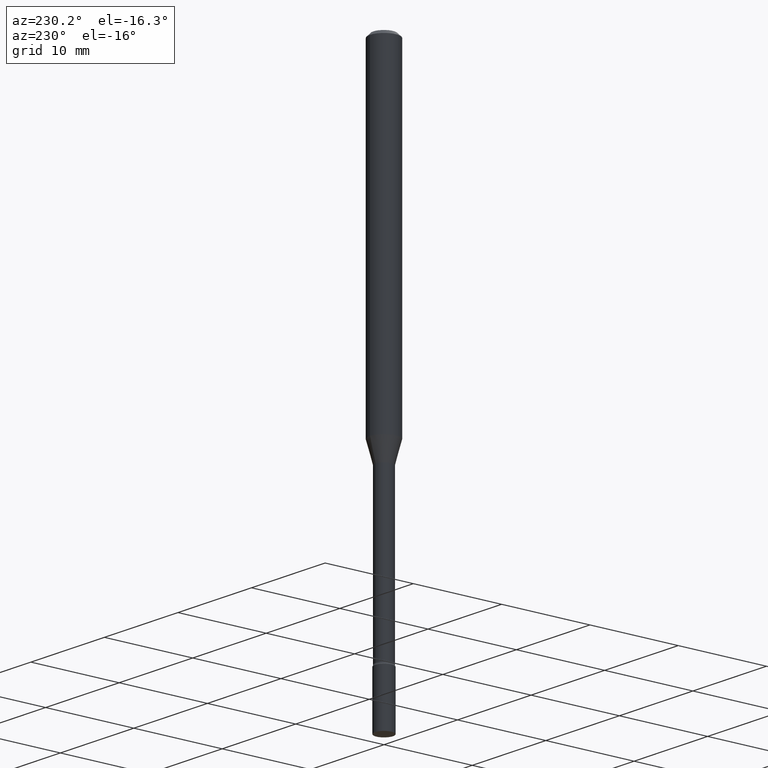
[diagram: clean part render]
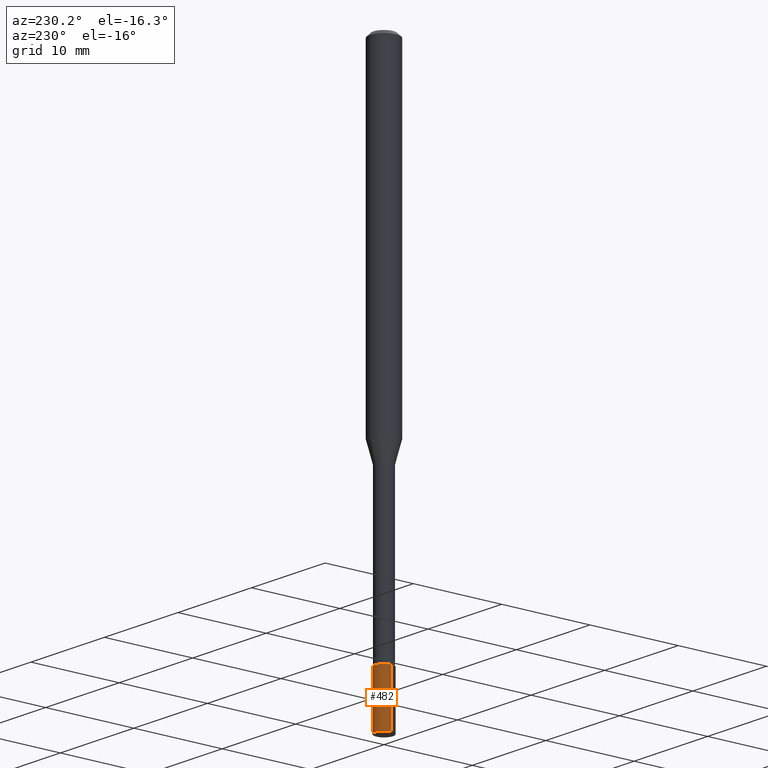
[diagram: same view with one face highlighted and labeled with its STEP entity id]
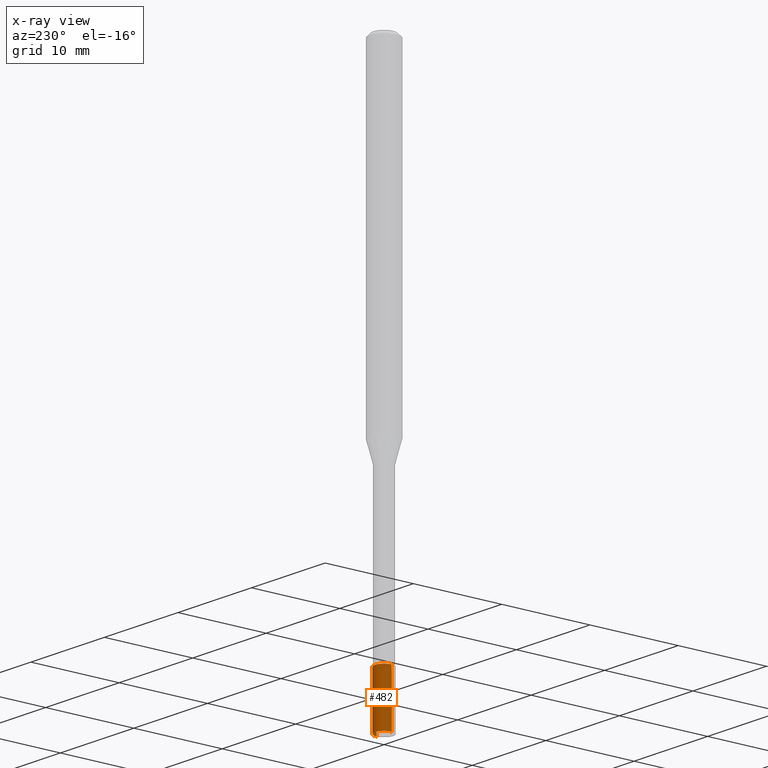
[diagram: x-ray of the same camera — body ghosted, the highlighted face saturated]
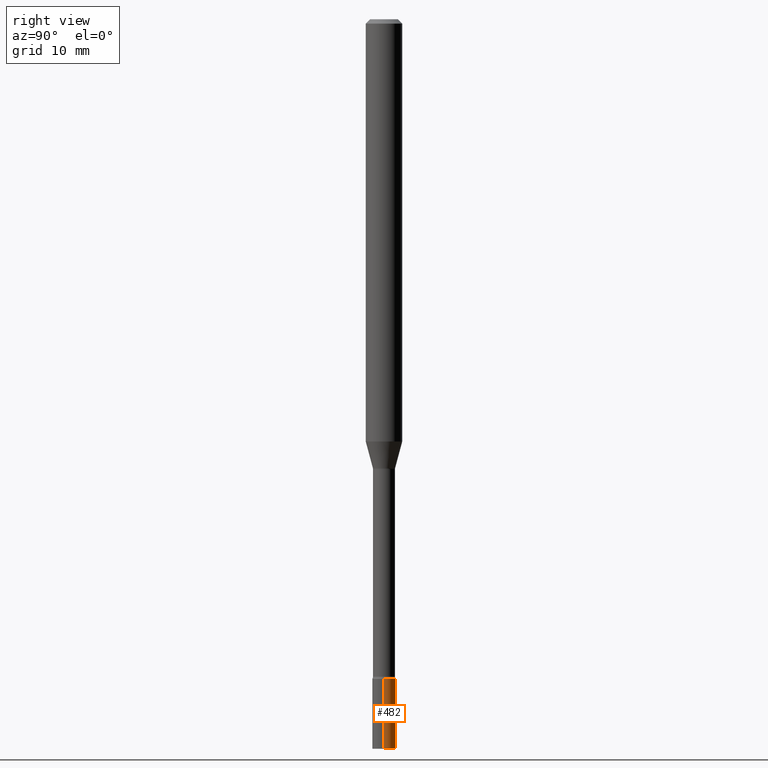
[diagram: same view with one face highlighted and labeled with its STEP entity id]
A machine part, auxiliary view. The second image highlights one B-rep face of the part: STEP entity #482.
The next image is the same camera in x-ray: the body ghosted, the highlighted face saturated — about 0% of this face is hidden behind the body in this view.
A second angle (right view) of the same face is appended — the face is thin or edge-on in the first view.
In plain terms, the highlighted cylindrical surface (edge-blend (fillet) strip) has radius 1.016 mm, axis along (-0, 0, 1).
Its self-contained STEP definition (entity closure, byte-faithful):
#14 = VERTEX_POINT ( 'NONE', #374 ) ;
#16 = LINE ( 'NONE', #165, #429 ) ;
#17 = EDGE_CURVE ( 'NONE', #195, #14, #16, .T. ) ;
#45 = AXIS2_PLACEMENT_3D ( 'NONE', #335, #98, #498 ) ;
#50 = VERTEX_POINT ( 'NONE', #462 ) ;
#51 = AXIS2_PLACEMENT_3D ( 'NONE', #285, #416, #218 ) ;
#59 = CIRCLE ( 'NONE', #45, 0.04000000000000000083 ) ;
#64 = ORIENTED_EDGE ( 'NONE', *, *, #17, .T. ) ;
#79 = CARTESIAN_POINT ( 'NONE',  ( 0.04000000000000000083, -2.793185071074506290E-16, 1.950470710318374387E-30 ) ) ;
#93 = CYLINDRICAL_SURFACE ( 'NONE', #51, 0.04000000000000000083 ) ;
#98 = DIRECTION ( 'NONE',  ( -2.445468806185136597E-29, 3.491481338843145583E-15, 1.000000000000000000 ) ) ;
#110 = CARTESIAN_POINT ( 'NONE',  ( 0.04000000000000000083, -8.170066332892960135E-15, -2.260000000000000231 ) ) ;
#164 = CARTESIAN_POINT ( 'NONE',  ( 6.113672015462842613E-29, -8.728703347107864943E-15, -2.500000000000000000 ) ) ;
#165 = CARTESIAN_POINT ( 'NONE',  ( -0.04000000000000000083, 2.842170943040400803E-16, -1.967574036101962509E-30 ) ) ;
#183 = EDGE_CURVE ( 'NONE', #50, #195, #351, .T. ) ;
#195 = VERTEX_POINT ( 'NONE', #248 ) ;
#218 = DIRECTION ( 'NONE',  ( 1.000000000000000000, -6.982962677686265922E-15, 4.876176775795935793E-29 ) ) ;
#247 = LINE ( 'NONE', #79, #496 ) ;
#248 = CARTESIAN_POINT ( 'NONE',  ( -0.04000000000000000083, -8.025508492142646404E-15, -2.500000000000000000 ) ) ;
#257 = VERTEX_POINT ( 'NONE', #110 ) ;
#285 = CARTESIAN_POINT ( 'NONE',  ( 0.000000000000000000, 0.000000000000000000, 0.000000000000000000 ) ) ;
#313 = DIRECTION ( 'NONE',  ( -2.445468806185136877E-29, 3.491481338843145188E-15, 1.000000000000000000 ) ) ;
#316 = DIRECTION ( 'NONE',  ( -2.445468806185136597E-29, 3.491481338843145583E-15, 1.000000000000000000 ) ) ;
#335 = CARTESIAN_POINT ( 'NONE',  ( 5.526759501978408888E-29, -7.890747825785510097E-15, -2.260000000000000231 ) ) ;
#351 = CIRCLE ( 'NONE', #488, 0.04000000000000000083 ) ;
#364 = ORIENTED_EDGE ( 'NONE', *, *, #437, .F. ) ;
#374 = CARTESIAN_POINT ( 'NONE',  ( -0.04000000000000000083, -8.025508492142646404E-15, -2.260000000000000231 ) ) ;
#387 = ORIENTED_EDGE ( 'NONE', *, *, #183, .T. ) ;
#404 = FACE_OUTER_BOUND ( 'NONE', #474, .T. ) ;
#416 = DIRECTION ( 'NONE',  ( -2.445468806185136597E-29, 3.491481338843145583E-15, 1.000000000000000000 ) ) ;
#429 = VECTOR ( 'NONE', #490, 39.37007874015748143 ) ;
#437 = EDGE_CURVE ( 'NONE', #50, #257, #247, .T. ) ;
#462 = CARTESIAN_POINT ( 'NONE',  ( 0.04000000000000000083, -9.008021854215314980E-15, -2.500000000000000000 ) ) ;
#474 = EDGE_LOOP ( 'NONE', ( #387, #64, #495, #364 ) ) ;
#482 = ADVANCED_FACE ( 'NONE', ( #404 ), #93, .T. ) ;
#487 = DIRECTION ( 'NONE',  ( 1.000000000000000000, -6.982962677686259611E-15, 0.000000000000000000 ) ) ;
#488 = AXIS2_PLACEMENT_3D ( 'NONE', #164, #316, #487 ) ;
#490 = DIRECTION ( 'NONE',  ( -2.445468806185136877E-29, 3.491481338843145188E-15, 1.000000000000000000 ) ) ;
#495 = ORIENTED_EDGE ( 'NONE', *, *, #503, .F. ) ;
#496 = VECTOR ( 'NONE', #313, 39.37007874015748143 ) ;
#498 = DIRECTION ( 'NONE',  ( 1.000000000000000000, -6.982962677686259611E-15, 0.000000000000000000 ) ) ;
#503 = EDGE_CURVE ( 'NONE', #257, #14, #59, .T. ) ;